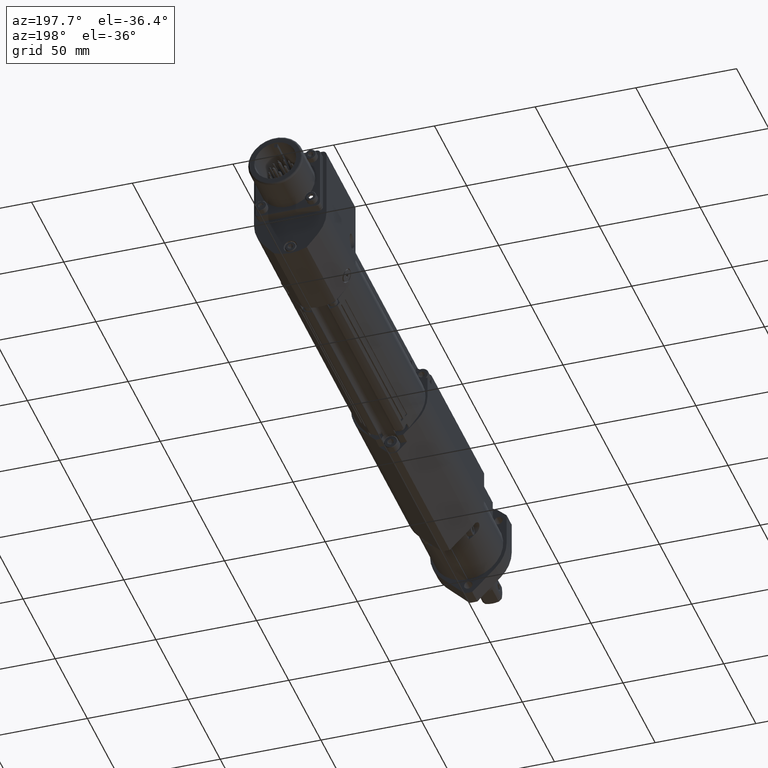
[diagram: clean part render]
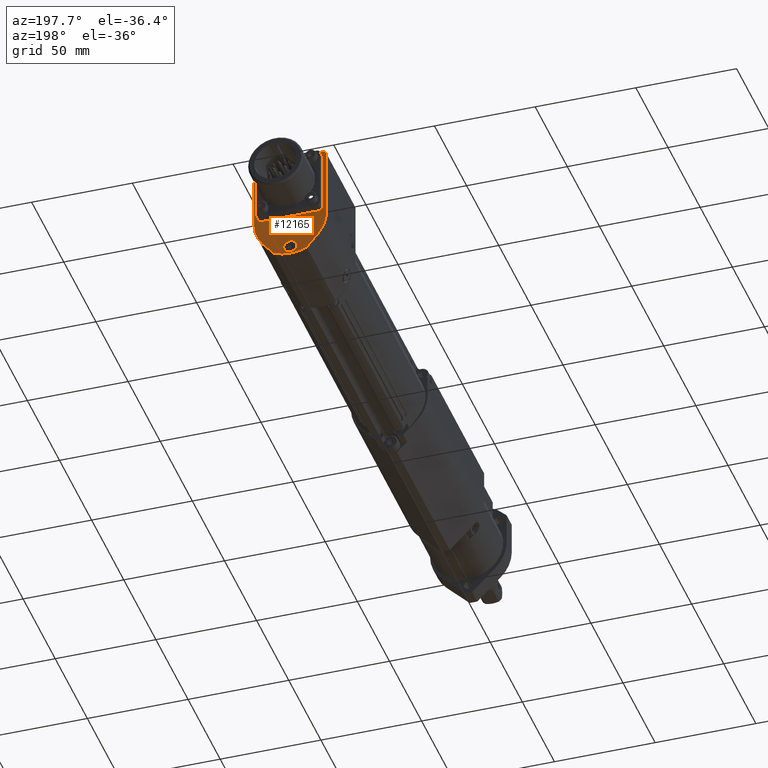
[diagram: same view with one face highlighted and labeled with its STEP entity id]
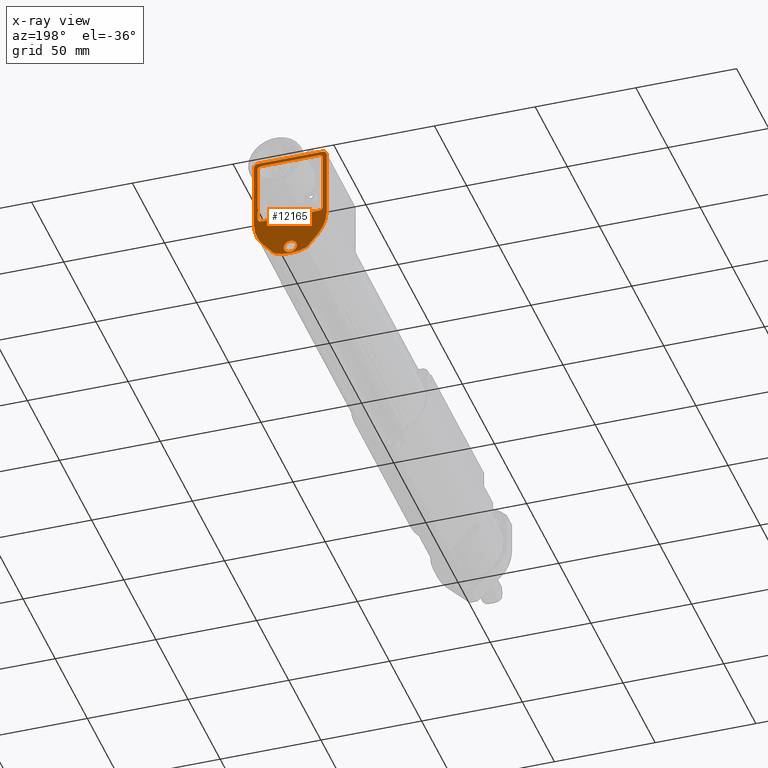
[diagram: x-ray of the same camera — body ghosted, the highlighted face saturated]
A machine part, auxiliary view. The second image highlights one B-rep face of the part: STEP entity #12165.
The next image is the same camera in x-ray: the body ghosted, the highlighted face saturated — about 0% of this face is hidden behind the body in this view.
In plain terms, the highlighted planar face has unit normal (-0, -1, 0).
Its self-contained STEP definition (entity closure, byte-faithful):
#467=FACE_BOUND('',#1280,.T.);
#468=FACE_BOUND('',#1281,.T.);
#559=FACE_OUTER_BOUND('',#1279,.T.);
#1279=EDGE_LOOP('',(#7673,#7674,#7675,#7676,#7677,#7678,#7679,#7680,#7681,
#7682));
#1280=EDGE_LOOP('',(#7683));
#1281=EDGE_LOOP('',(#7684,#7685,#7686,#7687,#7688,#7689,#7690,#7691));
#2066=CIRCLE('',#12906,2.);
#2103=CIRCLE('',#12958,17.9999999999948);
#2104=CIRCLE('',#12959,20.0000000000033);
#2105=CIRCLE('',#12960,17.9999999999937);
#2106=CIRCLE('',#12961,2.);
#2107=CIRCLE('',#12962,2.);
#2108=CIRCLE('',#12963,3.25);
#2109=CIRCLE('',#12964,2.);
#2110=CIRCLE('',#12965,2.);
#2111=CIRCLE('',#12966,2.);
#2611=LINE('',#17863,#3667);
#2612=LINE('',#17867,#3668);
#2613=LINE('',#17871,#3669);
#2614=LINE('',#17875,#3670);
#2615=LINE('',#17879,#3671);
#2616=LINE('',#17884,#3672);
#2617=LINE('',#17888,#3673);
#2618=LINE('',#17892,#3674);
#2619=LINE('',#17895,#3675);
#3667=VECTOR('',#14335,10.);
#3668=VECTOR('',#14338,10.);
#3669=VECTOR('',#14341,10.);
#3670=VECTOR('',#14344,10.);
#3671=VECTOR('',#14347,10.);
#3672=VECTOR('',#14352,10.);
#3673=VECTOR('',#14355,10.);
#3674=VECTOR('',#14358,10.);
#3675=VECTOR('',#14361,10.);
#4716=VERTEX_POINT('',#17700);
#4717=VERTEX_POINT('',#17702);
#4784=VERTEX_POINT('',#17861);
#4785=VERTEX_POINT('',#17862);
#4786=VERTEX_POINT('',#17864);
#4787=VERTEX_POINT('',#17866);
#4788=VERTEX_POINT('',#17868);
#4789=VERTEX_POINT('',#17870);
#4790=VERTEX_POINT('',#17872);
#4791=VERTEX_POINT('',#17874);
#4792=VERTEX_POINT('',#17876);
#4793=VERTEX_POINT('',#17878);
#4794=VERTEX_POINT('',#17881);
#4795=VERTEX_POINT('',#17883);
#4796=VERTEX_POINT('',#17885);
#4797=VERTEX_POINT('',#17887);
#4798=VERTEX_POINT('',#17889);
#4799=VERTEX_POINT('',#17891);
#4800=VERTEX_POINT('',#17893);
#5840=EDGE_CURVE('',#4717,#4716,#2066,.T.);
#5917=EDGE_CURVE('',#4784,#4785,#2611,.T.);
#5918=EDGE_CURVE('',#4785,#4786,#2103,.T.);
#5919=EDGE_CURVE('',#4786,#4787,#2612,.T.);
#5920=EDGE_CURVE('',#4787,#4788,#2104,.T.);
#5921=EDGE_CURVE('',#4788,#4789,#2613,.T.);
#5922=EDGE_CURVE('',#4789,#4790,#2105,.T.);
#5923=EDGE_CURVE('',#4790,#4791,#2614,.T.);
#5924=EDGE_CURVE('',#4791,#4792,#2106,.T.);
#5925=EDGE_CURVE('',#4792,#4793,#2615,.T.);
#5926=EDGE_CURVE('',#4793,#4784,#2107,.T.);
#5927=EDGE_CURVE('',#4794,#4794,#2108,.T.);
#5928=EDGE_CURVE('',#4716,#4795,#2616,.T.);
#5929=EDGE_CURVE('',#4795,#4796,#2109,.T.);
#5930=EDGE_CURVE('',#4796,#4797,#2617,.T.);
#5931=EDGE_CURVE('',#4797,#4798,#2110,.T.);
#5932=EDGE_CURVE('',#4798,#4799,#2618,.T.);
#5933=EDGE_CURVE('',#4799,#4800,#2111,.T.);
#5934=EDGE_CURVE('',#4800,#4717,#2619,.T.);
#7673=ORIENTED_EDGE('',*,*,#5917,.T.);
#7674=ORIENTED_EDGE('',*,*,#5918,.T.);
#7675=ORIENTED_EDGE('',*,*,#5919,.T.);
#7676=ORIENTED_EDGE('',*,*,#5920,.T.);
#7677=ORIENTED_EDGE('',*,*,#5921,.T.);
#7678=ORIENTED_EDGE('',*,*,#5922,.T.);
#7679=ORIENTED_EDGE('',*,*,#5923,.T.);
#7680=ORIENTED_EDGE('',*,*,#5924,.T.);
#7681=ORIENTED_EDGE('',*,*,#5925,.T.);
#7682=ORIENTED_EDGE('',*,*,#5926,.T.);
#7683=ORIENTED_EDGE('',*,*,#5927,.T.);
#7684=ORIENTED_EDGE('',*,*,#5840,.T.);
#7685=ORIENTED_EDGE('',*,*,#5928,.T.);
#7686=ORIENTED_EDGE('',*,*,#5929,.T.);
#7687=ORIENTED_EDGE('',*,*,#5930,.T.);
#7688=ORIENTED_EDGE('',*,*,#5931,.T.);
#7689=ORIENTED_EDGE('',*,*,#5932,.T.);
#7690=ORIENTED_EDGE('',*,*,#5933,.T.);
#7691=ORIENTED_EDGE('',*,*,#5934,.T.);
#11018=PLANE('',#12957);
#12165=ADVANCED_FACE('',(#559,#467,#468),#11018,.F.);
#12906=AXIS2_PLACEMENT_3D('',#17703,#14191,#14192);
#12957=AXIS2_PLACEMENT_3D('',#17860,#14333,#14334);
#12958=AXIS2_PLACEMENT_3D('',#17865,#14336,#14337);
#12959=AXIS2_PLACEMENT_3D('',#17869,#14339,#14340);
#12960=AXIS2_PLACEMENT_3D('',#17873,#14342,#14343);
#12961=AXIS2_PLACEMENT_3D('',#17877,#14345,#14346);
#12962=AXIS2_PLACEMENT_3D('',#17880,#14348,#14349);
#12963=AXIS2_PLACEMENT_3D('',#17882,#14350,#14351);
#12964=AXIS2_PLACEMENT_3D('',#17886,#14353,#14354);
#12965=AXIS2_PLACEMENT_3D('',#17890,#14356,#14357);
#12966=AXIS2_PLACEMENT_3D('',#17894,#14359,#14360);
#14191=DIRECTION('center_axis',(-6.81957384554787E-16,-1.,2.8404901394892E-16));
#14192=DIRECTION('ref_axis',(-1.,6.8195738455479E-16,1.09912079437919E-14));
#14333=DIRECTION('center_axis',(-6.81957384554787E-16,-1.,2.8404901394892E-16));
#14334=DIRECTION('ref_axis',(1.,-6.81957384554789E-16,-6.95520710207348E-15));
#14335=DIRECTION('',(-6.95520710207348E-15,-2.84049013948915E-16,-1.));
#14336=DIRECTION('center_axis',(6.81957384554787E-16,1.,-2.8404901394892E-16));
#14337=DIRECTION('ref_axis',(-0.766044443119001,7.04992851592199E-16,0.642787609686512));
#14338=DIRECTION('',(-0.642787609686698,2.20759588417206E-16,-0.766044443118845));
#14339=DIRECTION('center_axis',(6.81957384554787E-16,1.,-2.8404901394892E-16));
#14340=DIRECTION('ref_axis',(0.409255375521547,-1.99227582550832E-17,0.912419880102751));
#14341=DIRECTION('',(-0.642787609686476,6.55947925835023E-16,0.766044443119031));
#14342=DIRECTION('center_axis',(6.81957384554787E-16,1.,-2.8404901394892E-16));
#14343=DIRECTION('ref_axis',(1.,-6.81957384555136E-16,-1.22918739910095E-12));
#14344=DIRECTION('',(7.02051433881614E-15,2.84049013948915E-16,1.));
#14345=DIRECTION('center_axis',(6.81957384554787E-16,1.,-2.8404901394892E-16));
#14346=DIRECTION('ref_axis',(-6.95520710207348E-15,-2.84049013948915E-16,
-1.));
#14347=DIRECTION('',(1.,-6.81957384554787E-16,1.22464679914709E-16));
#14348=DIRECTION('center_axis',(6.81957384554787E-16,1.,-2.8404901394892E-16));
#14349=DIRECTION('ref_axis',(-1.,6.81957384554789E-16,6.95520710207348E-15));
#14350=DIRECTION('center_axis',(-6.81957384554787E-16,-1.,2.8404901394892E-16));
#14351=DIRECTION('ref_axis',(-1.,6.81957384554789E-16,6.95520710207348E-15));
#14352=DIRECTION('',(1.,-6.8195738455479E-16,-1.09912079437919E-14));
#14353=DIRECTION('center_axis',(-6.81957384554787E-16,-1.,2.8404901394892E-16));
#14354=DIRECTION('ref_axis',(-1.09912079437919E-14,-2.84049013948917E-16,
-1.));
#14355=DIRECTION('',(1.11468103298641E-14,2.84049013948912E-16,1.));
#14356=DIRECTION('center_axis',(-6.81957384554787E-16,-1.,2.8404901394892E-16));
#14357=DIRECTION('ref_axis',(1.,-6.8195738455479E-16,-1.09912079437919E-14));
#14358=DIRECTION('',(-1.,6.8195738455479E-16,1.09912079437919E-14));
#14359=DIRECTION('center_axis',(-6.81957384554787E-16,-1.,2.8404901394892E-16));
#14360=DIRECTION('ref_axis',(8.77076189454155E-15,2.84049013948919E-16,
1.));
#14361=DIRECTION('',(5.0358378216449E-15,-2.84049013948923E-16,-1.));
#17700=CARTESIAN_POINT('',(-14.2699999999515,211.000000000003,1.73000000005606));
#17702=CARTESIAN_POINT('',(-16.2699999999515,211.000000000003,3.73000000005608));
#17703=CARTESIAN_POINT('Origin',(-14.2699999999515,211.000000000003,3.73000000005605));
#17860=CARTESIAN_POINT('Origin',(5.39459358373448E-11,211.000000000003,
12.0732406476728));
#17861=CARTESIAN_POINT('',(18.0000000000528,211.000000000003,34.0000000000569));
#17862=CARTESIAN_POINT('',(18.0000000000526,211.000000000003,5.45807412041173E-11));
#17863=CARTESIAN_POINT('',(18.0000000000528,211.000000000003,34.0000000000569));
#17864=CARTESIAN_POINT('',(13.7887999761958,211.000000000003,-11.5701769743));
#17865=CARTESIAN_POINT('Origin',(5.77446424010476E-11,211.000000000003,
5.39065743542245E-11));
#17866=CARTESIAN_POINT('',(8.18510751067211,211.000000000003,-18.2483976018781));
#17867=CARTESIAN_POINT('',(13.7887999761958,211.000000000003,-11.5701769743));
#17868=CARTESIAN_POINT('',(-8.18510751046903,211.000000000003,-18.2483976020022));
#17869=CARTESIAN_POINT('Origin',(-3.67264552103562E-11,211.000000000003,
5.58872122301565E-11));
#17870=CARTESIAN_POINT('',(-13.7887999760917,211.000000000003,-11.5701769743021));
#17871=CARTESIAN_POINT('',(-8.18510751046903,211.000000000003,-18.2483976020022));
#17872=CARTESIAN_POINT('',(-17.9999999999347,211.000000000003,5.71048654142242E-11));
#17873=CARTESIAN_POINT('Origin',(5.89969739728247E-11,211.000000000003,
3.49794922304148E-11));
#17874=CARTESIAN_POINT('',(-17.9999999999345,211.000000000003,34.0000000000569));
#17875=CARTESIAN_POINT('',(-17.9999999999347,211.000000000003,5.71048654142242E-11));
#17876=CARTESIAN_POINT('',(-15.9999999999345,211.000000000003,36.0000000000569));
#17877=CARTESIAN_POINT('Origin',(-15.9999999999345,211.000000000003,34.0000000000569));
#17878=CARTESIAN_POINT('',(16.0000000000528,211.000000000003,36.0000000000569));
#17879=CARTESIAN_POINT('',(-15.9999999999345,211.000000000003,36.0000000000569));
#17880=CARTESIAN_POINT('Origin',(16.0000000000528,211.000000000003,34.0000000000569));
#17881=CARTESIAN_POINT('',(3.25000000006518,211.000000000003,-15.9999999999432));
#17882=CARTESIAN_POINT('Origin',(6.51770960040564E-11,211.000000000003,
-15.9999999999431));
#17883=CARTESIAN_POINT('',(14.2700000000482,211.000000000003,1.73000000005574));
#17884=CARTESIAN_POINT('',(-7.13499999994884,211.000000000003,1.73000000005597));
#17885=CARTESIAN_POINT('',(16.2700000000482,211.000000000003,3.73000000005572));
#17886=CARTESIAN_POINT('Origin',(14.2700000000483,211.000000000003,3.73000000005574));
#17887=CARTESIAN_POINT('',(16.2700000000486,211.000000000003,32.2700000000557));
#17888=CARTESIAN_POINT('',(16.2700000000483,211.000000000003,7.90162032386418));
#17889=CARTESIAN_POINT('',(14.2700000000486,211.000000000003,34.2700000000557));
#17890=CARTESIAN_POINT('Origin',(14.2700000000486,211.000000000003,32.2700000000557));
#17891=CARTESIAN_POINT('',(-14.2699999999516,211.000000000003,34.270000000056));
#17892=CARTESIAN_POINT('',(7.13500000005139,211.000000000003,34.2700000000558));
#17893=CARTESIAN_POINT('',(-16.2699999999516,211.000000000003,32.270000000056));
#17894=CARTESIAN_POINT('Origin',(-14.2699999999516,211.000000000003,32.270000000056));
#17895=CARTESIAN_POINT('',(-16.2699999999516,211.000000000003,22.1716203238644));